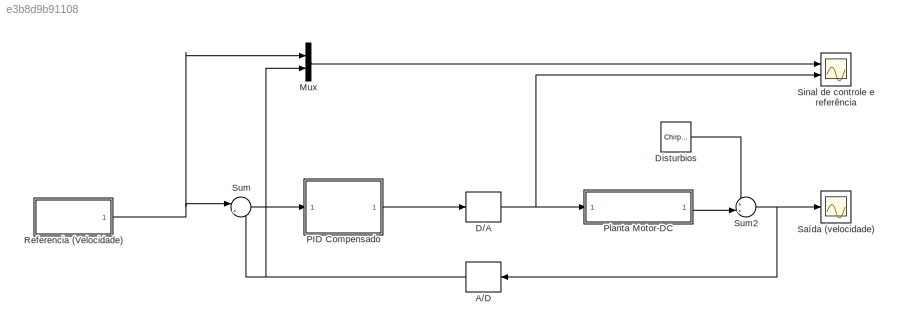
MODEL slx_e3b8d9b91108
KIND model
CONFIG AbsTol = auto
CONFIG EnableMultiTasking = off
CONFIG FixedStep = auto
CONFIG MaxStep = auto
CONFIG MinStep = auto
CONFIG RelTol = 1e-3
CONFIG SampleTimeConstraint = Unconstrained
CONFIG Solver = VariableStepAuto
CONFIG SolverName = VariableStepAuto
CONFIG StartTime = 0.0
CONFIG StopTime = 60
BLOCK [ZeroOrderHold] A//D
  SampleTime = T
BLOCK [ZeroOrderHold] D//A
  SampleTime = T
BLOCK [Reference] Disturbios  REF=simulink/Sources/Chirp Signal
  Ports = [0, 1]
  SourceBlock = simulink/Sources/Chirp Signal
  SourceProductBaseCode = SL
  SourceType = chirp
BLOCK [Mux] Mux
  DisplayOption = bar
  Inputs = 2
  Ports = [2, 1]
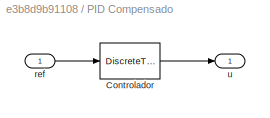
BLOCK [SubSystem] PID Compensado
  Ports = [1, 1]
  RequestExecContextInheritance = off
BLOCK [DiscreteTransferFcn] PID Compensado/Controlador
  Denominator = denaz_cl
  InputPortMap = u0
  Numerator = numaz_cl
  Ports = [1, 1]
BLOCK [Inport] PID Compensado/ref
BLOCK [Outport] PID Compensado/u
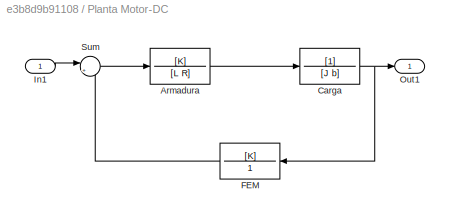
BLOCK [SubSystem] Planta Motor-DC
  Ports = [1, 1]
  RequestExecContextInheritance = off
BLOCK [TransferFcn] Planta Motor-DC/Armadura
  ContinuousStateAttributes = 'torque'
  Denominator = [L R]
  Numerator = [K]
BLOCK [TransferFcn] Planta Motor-DC/Carga
  ContinuousStateAttributes = 'velocidade'
  Denominator = [J b]
BLOCK [TransferFcn] Planta Motor-DC/FEM
  Denominator = 1
  Numerator = [K]
BLOCK [Inport] Planta Motor-DC/In1
BLOCK [Outport] Planta Motor-DC/Out1
BLOCK [Sum] Planta Motor-DC/Sum
  Inputs = |+-
  Ports = [2, 1]
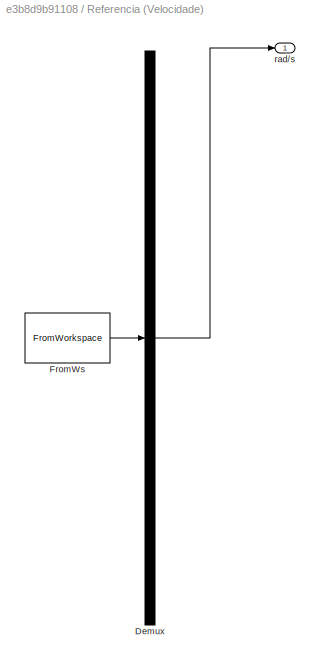
BLOCK [SubSystem] Referencia (Velocidade)
  ClipboardFcn = sigbuilder_block('clipboard');
  CloseFcn = sigbuilder_block('close');
  ContinueFcn = sigbuilder_block('continue')
  CopyFcn = sigbuilder_block('copy');
  DeleteFcn = sigbuilder_block('delete');
  LoadFcn = sigbuilder_block('load',[6 30 1012.5 447.75 ]);
  MaskHideContents = on
  ModelCloseFcn = sigbuilder_block('modelClose');
  NameChangeFcn = sigbuilder_block('namechange');
  OpenFcn = sigbuilder_block('open',[6 30 1012.5 447.75 ]);
  PauseFcn = sigbuilder_block('pause')
  Ports = [0, 1]
  PreSaveFcn = sigbuilder_block('preSave');
  RequestExecContextInheritance = off
  StartFcn = sigbuilder_block('start');
  StopFcn = sigbuilder_block('stop');
  Tag = STV Subsys
BLOCK [Demux] Referencia (Velocidade)/Demux
  DisplayOption = none
  Outputs = 1
  Ports = [1, 1]
  Tag = STV Demux
BLOCK [FromWorkspace] Referencia (Velocidade)/FromWs
  Tag = STV FromWs
  VariableName = tuvar
BLOCK [Outport] Referencia (Velocidade)/rad//s
  Tag = STV Outport
BLOCK [Scope] Saída (velocidade)
  Floating = off
  NumInputPorts = 1
  Ports = [1]
  ScopeSpecificationString = Simulink.scopes.TimeScopeBlockCfg('CurrentConfiguration', extmgr.ConfigurationSet(extmgr.Configuration('Core','General UI',true),extmgr.Configuration('Core','Source UI',true),extmgr.Configuration('Sources','WiredSimulink',true),extmgr.Configuration('Visuals','Time Domain',true,'SerializedDisplays',{struct('MinYLimReal','-2.34201','MaxYLimReal','11.48565','YLabelReal','','MinYLimMag','0.00000','Max...<+1355ch>
BLOCK [Scope] Sinal de controle e referência
  Floating = off
  NumInputPorts = 2
  Ports = [2]
  ScopeSpecificationString = Simulink.scopes.TimeScopeBlockCfg('CurrentConfiguration', extmgr.ConfigurationSet(extmgr.Configuration('Core','General UI',true,'FigureColor',[1 1 1]),extmgr.Configuration('Core','Source UI',true),extmgr.Configuration('Sources','WiredSimulink',true,'DataLoggingSaveFormat','StructureWithTime','DataLoggingDecimation','1','DataLoggingDecimateData',true,'DataLoggingVariableName','ScopeData1'),extmgr.C...<+2642ch>
BLOCK [Sum] Sum
  Inputs = |+-
  Ports = [2, 1]
BLOCK [Sum] Sum2
  Inputs = ++|
  Ports = [2, 1]
NET A//D:1 -> Mux:2, Sum:2
NET D//A:1 -> Planta Motor-DC:1, Sinal de controle e referência:2
LINE Disturbios:1 -> Sum2:1
LINE Mux:1 -> Sinal de controle e referência:1
LINE PID Compensado/Controlador:1 -> PID Compensado/u:1
LINE PID Compensado/ref:1 -> PID Compensado/Controlador:1
LINE PID Compensado:1 -> D//A:1
LINE Planta Motor-DC/Armadura:1 -> Planta Motor-DC/Carga:1
NET Planta Motor-DC/Carga:1 -> Planta Motor-DC/FEM:1, Planta Motor-DC/Out1:1
LINE Planta Motor-DC/FEM:1 -> Planta Motor-DC/Sum:2
LINE Planta Motor-DC/In1:1 -> Planta Motor-DC/Sum:1
LINE Planta Motor-DC/Sum:1 -> Planta Motor-DC/Armadura:1
LINE Planta Motor-DC:1 -> Sum2:2
NET Referencia (Velocidade):1 -> Mux:1, Sum:1
NET Sum2:1 -> A//D:1, Saída (velocidade):1
LINE Sum:1 -> PID Compensado:1
note: NET lines group one-source signal fan-out (src -> all destinations, sorted); 1:1 wires keep LINE
